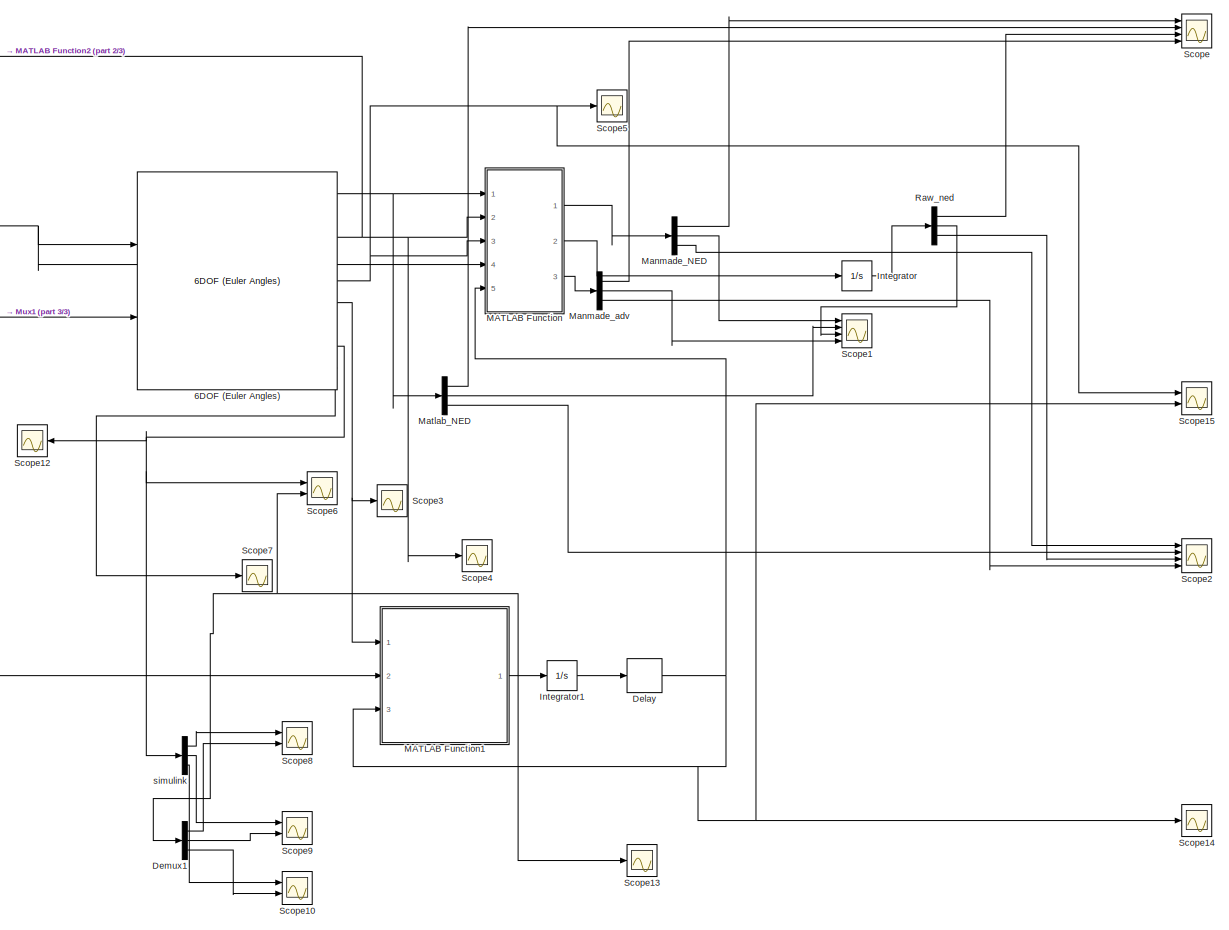
[diagram: root canvas - part 1/3, right side, full height]
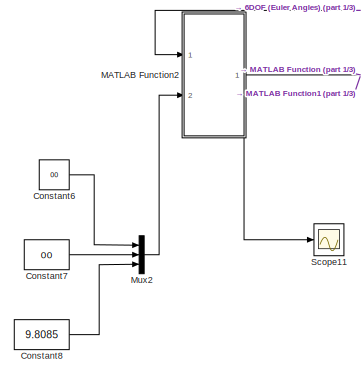
[diagram: root canvas - part 2/3, top left region]
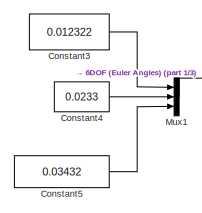
[diagram: root canvas - part 3/3, central region]
MODEL slx_95e13dc4e5fa
KIND model
CONFIG AbsTol = auto
CONFIG EnableMultiTasking = off
CONFIG FixedStep = 0.00001
CONFIG MaxStep = auto
CONFIG MinStep = auto
CONFIG RelTol = 1e-3
CONFIG SampleTimeConstraint = Unconstrained
CONFIG SolverName = FixedStepAuto
CONFIG StartTime = 0.0
CONFIG StopTime = 20
BLOCK [Reference] 6DOF (Euler Angles)  REF=shared6dof/6DOF (Euler Angles)
  Ports = [2, 9]
  SourceBlock = shared6dof/6DOF (Euler Angles)
  SourceProductBaseCode = AE,PW,MT,UV,VE,VP
  SourceType = 6DOF EoM (Body Axis)
BLOCK [Constant] Constant3
  Value = 0.012322
BLOCK [Constant] Constant4
  Value = 0.0233
BLOCK [Constant] Constant5
  Value = 0.03432
BLOCK [Constant] Constant6
  Value = 00
BLOCK [Constant] Constant7
  Value = 00
BLOCK [Constant] Constant8
  Value = 9.8085
BLOCK [Delay] Delay
  DelayLength = 1
  InputPortMap = u0
  Ports = [1, 1]
BLOCK [Demux] Demux1
  Outputs = 3
  Ports = [1, 3]
BLOCK [Integrator] Integrator
  Ports = [1, 1]
BLOCK [Integrator] Integrator1
  Ports = [1, 1]
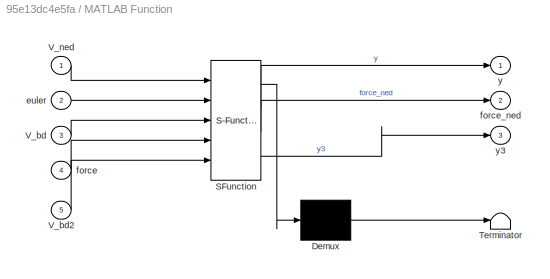
BLOCK [SubSystem] MATLAB Function
  ErrorFcn = Stateflow.Translate.translate
  PermitHierarchicalResolution = ExplicitOnly
  Ports = [5, 3]
  RequestExecContextInheritance = off
  SFBlockType = MATLAB Function
  TreatAsAtomicUnit = on
BLOCK [Demux] MATLAB Function/ Demux 
  Outputs = 1
  Ports = [1, 1]
BLOCK [S-Function] MATLAB Function/ SFunction 
  EnableBusSupport = on
  FunctionName = sf_sfun
  PortCounts = [5 4]
  Ports = [5, 4]
  SFcnIsStateOwnerBlock = off
  SFunctionDeploymentMode = off
  Tag = Stateflow S-Function 2
BLOCK [Terminator] MATLAB Function/ Terminator 
BLOCK [Inport] MATLAB Function/V_bd
  Port = 3
BLOCK [Inport] MATLAB Function/V_bd2
  Port = 5
BLOCK [Inport] MATLAB Function/V_ned
BLOCK [Inport] MATLAB Function/euler
  Port = 2
BLOCK [Inport] MATLAB Function/force
  Port = 4
BLOCK [Outport] MATLAB Function/force_ned
  Port = 2
BLOCK [Outport] MATLAB Function/y
BLOCK [Outport] MATLAB Function/y3
  Port = 3
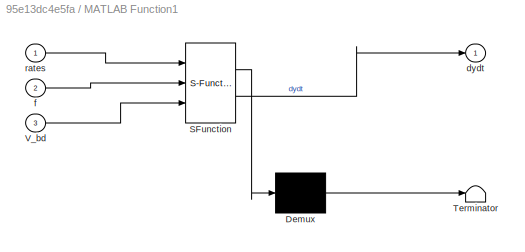
BLOCK [SubSystem] MATLAB Function1
  ErrorFcn = Stateflow.Translate.translate
  PermitHierarchicalResolution = ExplicitOnly
  Ports = [3, 1]
  RequestExecContextInheritance = off
  SFBlockType = MATLAB Function
  TreatAsAtomicUnit = on
BLOCK [Demux] MATLAB Function1/ Demux 
  Outputs = 1
  Ports = [1, 1]
BLOCK [S-Function] MATLAB Function1/ SFunction 
  EnableBusSupport = on
  FunctionName = sf_sfun
  PortCounts = [3 2]
  Ports = [3, 2]
  SFcnIsStateOwnerBlock = off
  SFunctionDeploymentMode = off
  Tag = Stateflow S-Function 1
BLOCK [Terminator] MATLAB Function1/ Terminator 
BLOCK [Inport] MATLAB Function1/V_bd
  Port = 3
BLOCK [Outport] MATLAB Function1/dydt
BLOCK [Inport] MATLAB Function1/f
  Port = 2
BLOCK [Inport] MATLAB Function1/rates
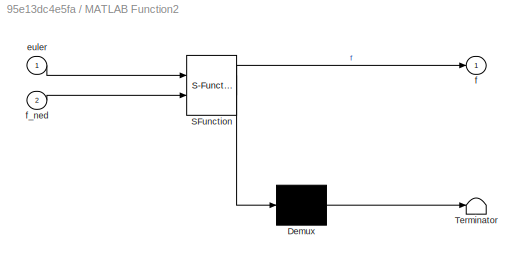
BLOCK [SubSystem] MATLAB Function2
  ErrorFcn = Stateflow.Translate.translate
  PermitHierarchicalResolution = ExplicitOnly
  Ports = [2, 1]
  RequestExecContextInheritance = off
  SFBlockType = MATLAB Function
  TreatAsAtomicUnit = on
BLOCK [Demux] MATLAB Function2/ Demux 
  Outputs = 1
  Ports = [1, 1]
BLOCK [S-Function] MATLAB Function2/ SFunction 
  EnableBusSupport = on
  FunctionName = sf_sfun
  PortCounts = [2 2]
  Ports = [2, 2]
  SFcnIsStateOwnerBlock = off
  SFunctionDeploymentMode = off
  Tag = Stateflow S-Function 3
BLOCK [Terminator] MATLAB Function2/ Terminator 
BLOCK [Inport] MATLAB Function2/euler
BLOCK [Outport] MATLAB Function2/f
BLOCK [Inport] MATLAB Function2/f_ned
  Port = 2
BLOCK [Demux] Manmade_NED
  Outputs = 3
  Ports = [1, 3]
BLOCK [Demux] Manmade_adv
  Outputs = 3
  Ports = [1, 3]
BLOCK [Demux] Matlab_NED
  Outputs = 3
  Ports = [1, 3]
BLOCK [Mux] Mux1
  DisplayOption = bar
  Inputs = 3
  Ports = [3, 1]
BLOCK [Mux] Mux2
  DisplayOption = bar
  Inputs = 3
  Ports = [3, 1]
BLOCK [Demux] Raw_ned
  Outputs = 3
  Ports = [1, 3]
BLOCK [Scope] Scope
  Floating = off
  NumInputPorts = 4
  Ports = [4]
  ScopeSpecificationString = Simulink.scopes.TimeScopeBlockCfg('CurrentConfiguration', extmgr.ConfigurationSet(extmgr.Configuration('Core','General UI',true),extmgr.Configuration('Core','Source UI',true),extmgr.Configuration('Sources','WiredSimulink',true),extmgr.Configuration('Visuals','Time Domain',true,'SerializedDisplays',{struct('MinYLimReal','-0.00103','MaxYLimReal','0.0004','YLabelReal','','MinYLimMag','0.00000','MaxYL...<+1561ch>
BLOCK [Scope] Scope1
  Floating = off
  NumInputPorts = 4
  Ports = [4]
  ScopeSpecificationString = Simulink.scopes.TimeScopeBlockCfg('CurrentConfiguration', extmgr.ConfigurationSet(extmgr.Configuration('Core','General UI',true),extmgr.Configuration('Core','Source UI',true),extmgr.Configuration('Sources','WiredSimulink',true,'DataLoggingVariableName','ScopeData1'),extmgr.Configuration('Visuals','Time Domain',true,'SerializedDisplays',{struct('MinYLimReal','-0.00624','MaxYLimReal','0.00069','YLab...<+1493ch>
BLOCK [Scope] Scope10
  Floating = off
  NumInputPorts = 2
  Ports = [2]
  ScopeSpecificationString = Simulink.scopes.TimeScopeBlockCfg('CurrentConfiguration', extmgr.ConfigurationSet(extmgr.Configuration('Core','General UI',true),extmgr.Configuration('Core','Source UI',true),extmgr.Configuration('Sources','WiredSimulink',true,'DataLoggingVariableName','ScopeData10'),extmgr.Configuration('Visuals','Time Domain',true,'SerializedDisplays',{struct('MinYLimReal','-63.77438','MaxYLimReal','53.86103','Y...<+1440ch>
BLOCK [Scope] Scope11
  Floating = off
  NumInputPorts = 1
  Ports = [1]
  ScopeSpecificationString = Simulink.scopes.TimeScopeBlockCfg('CurrentConfiguration', extmgr.ConfigurationSet(extmgr.Configuration('Core','General UI',true),extmgr.Configuration('Core','Source UI',true),extmgr.Configuration('Sources','WiredSimulink',true,'DataLoggingVariableName','ScopeData11'),extmgr.Configuration('Visuals','Time Domain',true,'SerializedDisplays',{struct('MinYLimReal','-5.17695','MaxYLimReal','11.47355','YL...<+1454ch>
BLOCK [Scope] Scope12
  Floating = off
  NameLocation = top
  NumInputPorts = 1
  Ports = [1]
  ScopeSpecificationString = Simulink.scopes.TimeScopeBlockCfg('CurrentConfiguration', extmgr.ConfigurationSet(extmgr.Configuration('Core','General UI',true),extmgr.Configuration('Core','Source UI',true),extmgr.Configuration('Sources','WiredSimulink',true,'DataLoggingVariableName','ScopeData12'),extmgr.Configuration('Visuals','Time Domain',true,'SerializedDisplays',{struct('MinYLimReal','-87.18204','MaxYLimReal','111.61194','...<+1500ch>
BLOCK [Scope] Scope13
  Floating = off
  NumInputPorts = 1
  Ports = [1]
  ScopeSpecificationString = Simulink.scopes.TimeScopeBlockCfg('CurrentConfiguration', extmgr.ConfigurationSet(extmgr.Configuration('Core','General UI',true),extmgr.Configuration('Core','Source UI',true),extmgr.Configuration('Sources','WiredSimulink',true,'DataLoggingVariableName','ScopeData13'),extmgr.Configuration('Visuals','Time Domain',true,'SerializedDisplays',{struct('MinYLimReal','-87.18536','MaxYLimReal','111.61734','...<+1485ch>
BLOCK [Scope] Scope14
  Floating = off
  NumInputPorts = 1
  Ports = [1]
  ScopeSpecificationString = Simulink.scopes.TimeScopeBlockCfg('CurrentConfiguration', extmgr.ConfigurationSet(extmgr.Configuration('Core','General UI',true),extmgr.Configuration('Core','Source UI',true),extmgr.Configuration('Sources','WiredSimulink',true,'DataLoggingVariableName','ScopeData14'),extmgr.Configuration('Visuals','Time Domain',true,'SerializedDisplays',{struct('MinYLimReal','-96.25246','MaxYLimReal','213.36432','...<+1452ch>
BLOCK [Scope] Scope15
  Floating = off
  NumInputPorts = 2
  Ports = [2]
  ScopeSpecificationString = Simulink.scopes.TimeScopeBlockCfg('CurrentConfiguration', extmgr.ConfigurationSet(extmgr.Configuration('Core','General UI',true),extmgr.Configuration('Core','Source UI',true),extmgr.Configuration('Sources','WiredSimulink',true,'DataLoggingVariableName','ScopeData15'),extmgr.Configuration('Visuals','Time Domain',true,'SerializedDisplays',{struct('MinYLimReal','-96.30214','MaxYLimReal','213.8114','Y...<+1568ch>
BLOCK [Scope] Scope2
  Floating = off
  NumInputPorts = 4
  Ports = [4]
  ScopeSpecificationString = Simulink.scopes.TimeScopeBlockCfg('CurrentConfiguration', extmgr.ConfigurationSet(extmgr.Configuration('Core','General UI',true),extmgr.Configuration('Core','Source UI',true),extmgr.Configuration('Sources','WiredSimulink',true,'DataLoggingVariableName','ScopeData2'),extmgr.Configuration('Visuals','Time Domain',true,'SerializedDisplays',{struct('MinYLimReal','-24.51775','MaxYLimReal','220.65976','Y...<+1503ch>
BLOCK [Scope] Scope3
  Floating = off
  NumInputPorts = 1
  Ports = [1]
  ScopeSpecificationString = Simulink.scopes.TimeScopeBlockCfg('CurrentConfiguration', extmgr.ConfigurationSet(extmgr.Configuration('Core','General UI',true),extmgr.Configuration('Core','Source UI',true),extmgr.Configuration('Sources','WiredSimulink',true,'DataLoggingVariableName','ScopeData3'),extmgr.Configuration('Visuals','Time Domain',true,'SerializedDisplays',{struct('MinYLimReal','-0.08579','MaxYLimReal','0.77211','YLab...<+1460ch>
BLOCK [Scope] Scope4
  Floating = off
  NumInputPorts = 1
  Ports = [1]
  ScopeSpecificationString = Simulink.scopes.TimeScopeBlockCfg('CurrentConfiguration', extmgr.ConfigurationSet(extmgr.Configuration('Core','General UI',true),extmgr.Configuration('Core','Source UI',true),extmgr.Configuration('Sources','WiredSimulink',true,'DataLoggingVariableName','ScopeData4'),extmgr.Configuration('Visuals','Time Domain',true,'SerializedDisplays',{struct('MinYLimReal','-3.92699','MaxYLimReal','3.92699','YLab...<+1489ch>
BLOCK [Scope] Scope5
  Floating = off
  NumInputPorts = 1
  Ports = [1]
  ScopeSpecificationString = Simulink.scopes.TimeScopeBlockCfg('CurrentConfiguration', extmgr.ConfigurationSet(extmgr.Configuration('Core','General UI',true),extmgr.Configuration('Core','Source UI',true),extmgr.Configuration('Sources','WiredSimulink',true,'DataLoggingVariableName','ScopeData5'),extmgr.Configuration('Visuals','Time Domain',true,'SerializedDisplays',{struct('MinYLimReal','-96.24467','MaxYLimReal','213.34269','Y...<+1470ch>
BLOCK [Scope] Scope6
  Floating = off
  NumInputPorts = 2
  Ports = [2]
  ScopeSpecificationString = Simulink.scopes.TimeScopeBlockCfg('CurrentConfiguration', extmgr.ConfigurationSet(extmgr.Configuration('Core','General UI',true),extmgr.Configuration('Core','Source UI',true),extmgr.Configuration('Sources','WiredSimulink',true,'DataLoggingVariableName','ScopeData6'),extmgr.Configuration('Visuals','Time Domain',true,'SerializedDisplays',{struct('MinYLimReal','-87.25433','MaxYLimReal','112.23807','Y...<+1558ch>
BLOCK [Scope] Scope7
  Floating = off
  NumInputPorts = 1
  Ports = [1]
  ScopeSpecificationString = Simulink.scopes.TimeScopeBlockCfg('CurrentConfiguration', extmgr.ConfigurationSet(extmgr.Configuration('Core','General UI',true),extmgr.Configuration('Core','Source UI',true),extmgr.Configuration('Sources','WiredSimulink',true,'DataLoggingVariableName','ScopeData7'),extmgr.Configuration('Visuals','Time Domain',true,'SerializedDisplays',{struct('MinYLimReal','-5.17695','MaxYLimReal','11.47355','YLa...<+1625ch>
BLOCK [Scope] Scope8
  Floating = off
  NumInputPorts = 2
  Ports = [2]
  ScopeSpecificationString = Simulink.scopes.TimeScopeBlockCfg('CurrentConfiguration', extmgr.ConfigurationSet(extmgr.Configuration('Core','General UI',true),extmgr.Configuration('Core','Source UI',true),extmgr.Configuration('Sources','WiredSimulink',true,'DataLoggingVariableName','ScopeData8'),extmgr.Configuration('Visuals','Time Domain',true,'SerializedDisplays',{struct('MinYLimReal','-132.47744','MaxYLimReal','128.0468','Y...<+1489ch>
BLOCK [Scope] Scope9
  Floating = off
  NumInputPorts = 2
  Ports = [2]
  ScopeSpecificationString = Simulink.scopes.TimeScopeBlockCfg('CurrentConfiguration', extmgr.ConfigurationSet(extmgr.Configuration('Core','General UI',true),extmgr.Configuration('Core','Source UI',true),extmgr.Configuration('Sources','WiredSimulink',true,'DataLoggingVariableName','ScopeData9'),extmgr.Configuration('Visuals','Time Domain',true,'SerializedDisplays',{struct('MinYLimReal','-54.71562','MaxYLimReal','93.70784','YL...<+1439ch>
BLOCK [Demux] simulink
  Outputs = 3
  Ports = [1, 3]
NET 6DOF (Euler Angles):1 -> MATLAB Function:1, Matlab_NED:1
NET 6DOF (Euler Angles):3 -> MATLAB Function2:1, MATLAB Function:2, Scope4:1
NET 6DOF (Euler Angles):5 -> MATLAB Function:3, Scope15:1, Scope5:1
NET 6DOF (Euler Angles):6 -> MATLAB Function1:1, Scope3:1
NET 6DOF (Euler Angles):8 -> Scope12:1, Scope6:1, simulink:1
LINE 6DOF (Euler Angles):9 -> Scope7:1
LINE Constant3:1 -> Mux1:1
LINE Constant4:1 -> Mux1:2
LINE Constant5:1 -> Mux1:3
LINE Constant6:1 -> Mux2:1
LINE Constant7:1 -> Mux2:2
LINE Constant8:1 -> Mux2:3
NET Delay:1 -> MATLAB Function1:3, MATLAB Function:5, Scope14:1, Scope15:2
LINE Demux1:1 -> Scope8:2
LINE Demux1:2 -> Scope9:2
LINE Demux1:3 -> Scope10:2
LINE Integrator1:1 -> Delay:1
LINE Integrator:1 -> Raw_ned:1
NET MATLAB Function1:1 -> Demux1:1, Integrator1:1, Scope13:1, Scope6:2
NET MATLAB Function2:1 -> 6DOF (Euler Angles):1, MATLAB Function1:2, MATLAB Function:4, Scope11:1
LINE MATLAB Function:1 -> Manmade_NED:1
LINE MATLAB Function:2 -> Integrator:1
LINE MATLAB Function:3 -> Manmade_adv:1
LINE Manmade_NED:1 -> Scope:1
LINE Manmade_NED:2 -> Scope1:1
LINE Manmade_NED:3 -> Scope2:1
LINE Manmade_adv:1 -> Scope:4
LINE Manmade_adv:2 -> Scope1:4
LINE Manmade_adv:3 -> Scope2:4
LINE Matlab_NED:1 -> Scope:2
LINE Matlab_NED:2 -> Scope1:2
LINE Matlab_NED:3 -> Scope2:2
LINE Mux1:1 -> 6DOF (Euler Angles):2
LINE Mux2:1 -> MATLAB Function2:2
LINE Raw_ned:1 -> Scope:3
LINE Raw_ned:2 -> Scope1:3
LINE Raw_ned:3 -> Scope2:3
LINE simulink:1 -> Scope8:1
LINE simulink:2 -> Scope9:1
LINE simulink:3 -> Scope10:1
note: NET lines group one-source signal fan-out (src -> all destinations, sorted); 1:1 wires keep LINE
CHART MATLAB Function1 states=1 transitions=1
  STATE_LABEL 'eML_blk_kernel()'
  STATE_LABEL 'SCRIPT:\nfunction dydt = fcn(rates, f, V_bd)\n\ndydt=zeros(3,1);\nmass_inv=1;\np=rates(1);\nq=rates(2);\nr=rates(3);\nu=V_bd(1);\nv=V_bd(2);\nw=V_bd(3);\n\n\n\n\tdydt(1) = ((f(1)*mass_inv) + (r*v) - (q*w));%//%u_dot//optimization\n\tdydt(2) = ((f(2)*mass_inv) + (p*w) - (r*u));%//%v_dot\n\tdydt(3) = (f(3)*mass_inv) + (q*u) - (p*v);%//%w_dot\n\n%dydt=zeros(3,1);\nend\n'
CHART MATLAB Function states=1 transitions=1
  STATE_LABEL 'eML_blk_kernel()'
  STATE_LABEL 'SCRIPT:\nfunction [y,force_ned,y3] = fcn(V_ned, euler, V_bd, force, V_bd2)\n\nphi=euler(1);\ntheta=euler(2);\npsi=euler(3);\n\nR_v1_v= [  cos(psi),  sin(psi),  0 ;  ...\n          -sin(psi),  cos(psi),  0;   ...\n                 0 ,      0   ,  1  ] ;\n\n \nR_v2_v1= [  cos(theta),   0,    -sin(theta); ...\n                    0,    1,      0 ;        ...\n           sin(theta),    0,     cos(theta)  ];\n \n \n \nR...<+328ch>'
CHART MATLAB Function2 states=1 transitions=1
  STATE_LABEL 'eML_blk_kernel()'
  STATE_LABEL 'SCRIPT:\nfunction f = fcn(euler,f_ned)\n\nphi=euler(1);\ntheta=euler(2);\npsi=euler(3);\n\nR_v1_v= [  cos(psi),  sin(psi),  0 ;  ...\n          -sin(psi),  cos(psi),  0;   ...\n                 0 ,      0   ,  1  ] ;\n\n \nR_v2_v1= [  cos(theta),   0,    -sin(theta); ...\n                    0,    1,      0 ;        ...\n           sin(theta),    0,     cos(theta)  ];\n \n \n \nR_b_v2= [   1,     0,            0 ; ...<+196ch>'
CHART  states=0 transitions=0
CHART  states=0 transitions=0
CHART  states=0 transitions=0
